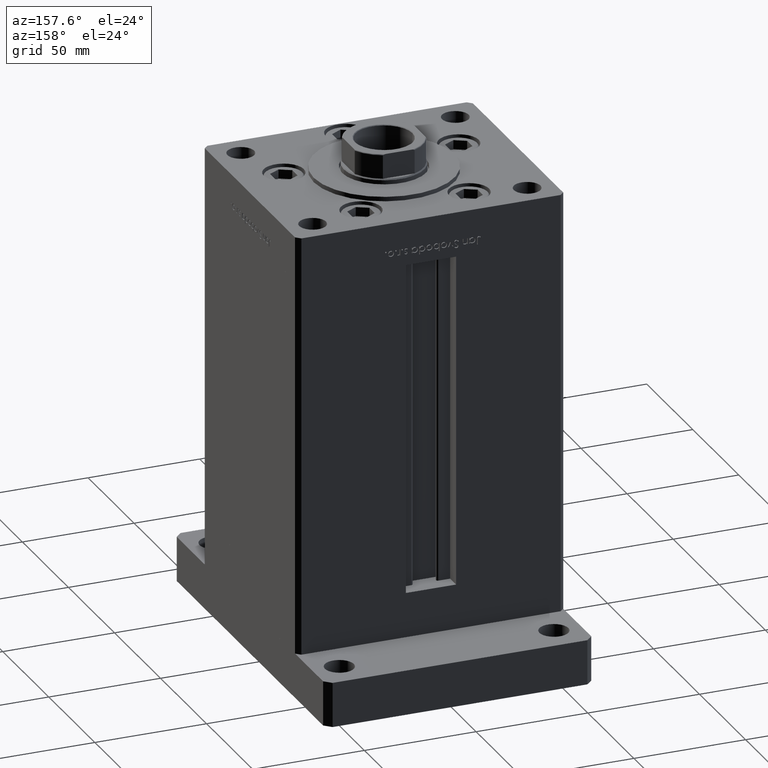
[diagram: clean part render]
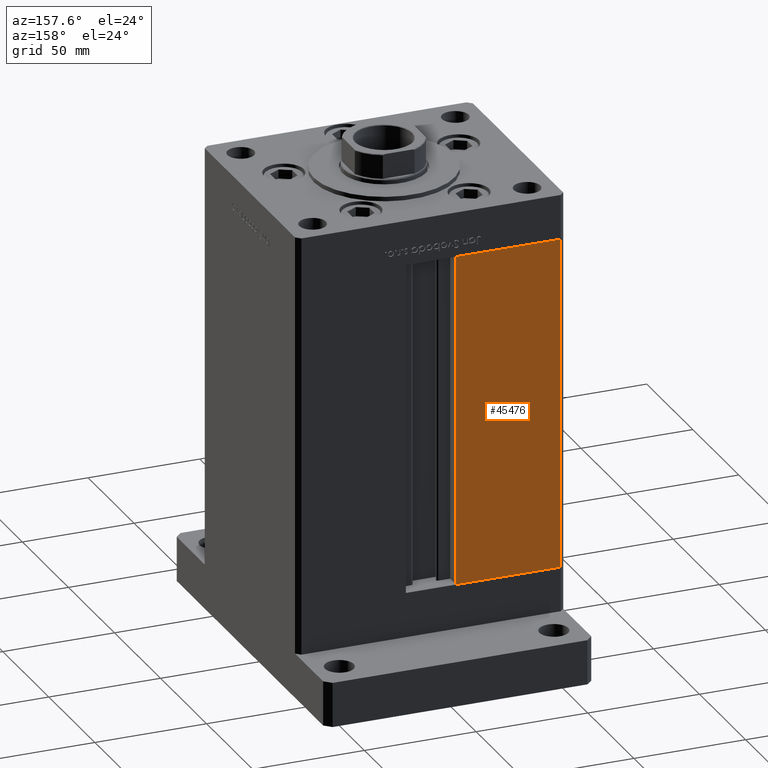
[diagram: same view with one face highlighted and labeled with its STEP entity id]
A machine part, auxiliary view. The second image highlights one B-rep face of the part: STEP entity #45476.
In plain terms, the highlighted planar face has unit normal (-0, -1, 0).
Its self-contained STEP definition (entity closure, byte-faithful):
#880 = CARTESIAN_POINT ( 'NONE',  ( -57.99999999999999289, 51.00000000000000711, 148.5000000000000000 ) ) ;
#3356 = EDGE_LOOP ( 'NONE', ( #53420, #41643, #24671, #35727 ) ) ;
#4460 = EDGE_CURVE ( 'NONE', #35671, #20888, #30618, .T. ) ;
#5031 = VECTOR ( 'NONE', #42839, 1000.000000000000000 ) ;
#11690 = VERTEX_POINT ( 'NONE', #20604 ) ;
#12179 = FACE_OUTER_BOUND ( 'NONE', #3356, .T. ) ;
#17126 = CARTESIAN_POINT ( 'NONE',  ( -11.25000000000000178, 51.00000000000000000, 0.000000000000000000 ) ) ;
#18812 = DIRECTION ( 'NONE',  ( -1.000000000000000000, 1.484255380514915423E-16, 0.000000000000000000 ) ) ;
#20604 = CARTESIAN_POINT ( 'NONE',  ( -11.25000000000000178, 51.00000000000000000, 148.5000000000000000 ) ) ;
#20645 = CARTESIAN_POINT ( 'NONE',  ( -57.99999999999999289, 51.00000000000000711, 0.000000000000000000 ) ) ;
#20837 = DIRECTION ( 'NONE',  ( 1.000000000000000000, -1.484255380514915423E-16, 0.000000000000000000 ) ) ;
#20888 = VERTEX_POINT ( 'NONE', #20645 ) ;
#23679 = CARTESIAN_POINT ( 'NONE',  ( -11.25000000000000178, 51.00000000000000000, 0.000000000000000000 ) ) ;
#24611 = DIRECTION ( 'NONE',  ( -1.484255380514915423E-16, -1.000000000000000000, 0.000000000000000000 ) ) ;
#24671 = ORIENTED_EDGE ( 'NONE', *, *, #52645, .T. ) ;
#25415 = CARTESIAN_POINT ( 'NONE',  ( -11.25000000000000178, 51.00000000000000000, 148.5000000000000000 ) ) ;
#26027 = DIRECTION ( 'NONE',  ( -0.000000000000000000, -0.000000000000000000, 1.000000000000000000 ) ) ;
#27386 = CARTESIAN_POINT ( 'NONE',  ( -11.25000000000000178, 51.00000000000000000, 148.5000000000000000 ) ) ;
#27941 = AXIS2_PLACEMENT_3D ( 'NONE', #25415, #24611, #20837 ) ;
#30618 = LINE ( 'NONE', #38742, #5031 ) ;
#34174 = VECTOR ( 'NONE', #26027, 1000.000000000000000 ) ;
#34175 = LINE ( 'NONE', #17126, #34174 ) ;
#34743 = LINE ( 'NONE', #27386, #48107 ) ;
#35671 = VERTEX_POINT ( 'NONE', #880 ) ;
#35727 = ORIENTED_EDGE ( 'NONE', *, *, #4460, .F. ) ;
#36829 = VECTOR ( 'NONE', #18812, 1000.000000000000000 ) ;
#38742 = CARTESIAN_POINT ( 'NONE',  ( -57.99999999999999289, 51.00000000000000711, 148.5000000000000000 ) ) ;
#40614 = EDGE_CURVE ( 'NONE', #47870, #11690, #34175, .T. ) ;
#41432 = PLANE ( 'NONE',  #27941 ) ;
#41643 = ORIENTED_EDGE ( 'NONE', *, *, #40614, .F. ) ;
#42839 = DIRECTION ( 'NONE',  ( -0.000000000000000000, -0.000000000000000000, -1.000000000000000000 ) ) ;
#43366 = CARTESIAN_POINT ( 'NONE',  ( -11.25000000000000178, 51.00000000000000000, 0.000000000000000000 ) ) ;
#43492 = LINE ( 'NONE', #23679, #36829 ) ;
#43681 = DIRECTION ( 'NONE',  ( 1.000000000000000000, 0.000000000000000000, 0.000000000000000000 ) ) ;
#45476 = ADVANCED_FACE ( 'NONE', ( #12179 ), #41432, .F. ) ;
#47870 = VERTEX_POINT ( 'NONE', #43366 ) ;
#48107 = VECTOR ( 'NONE', #43681, 1000.000000000000000 ) ;
#51953 = EDGE_CURVE ( 'NONE', #35671, #11690, #34743, .T. ) ;
#52645 = EDGE_CURVE ( 'NONE', #47870, #20888, #43492, .T. ) ;
#53420 = ORIENTED_EDGE ( 'NONE', *, *, #51953, .T. ) ;